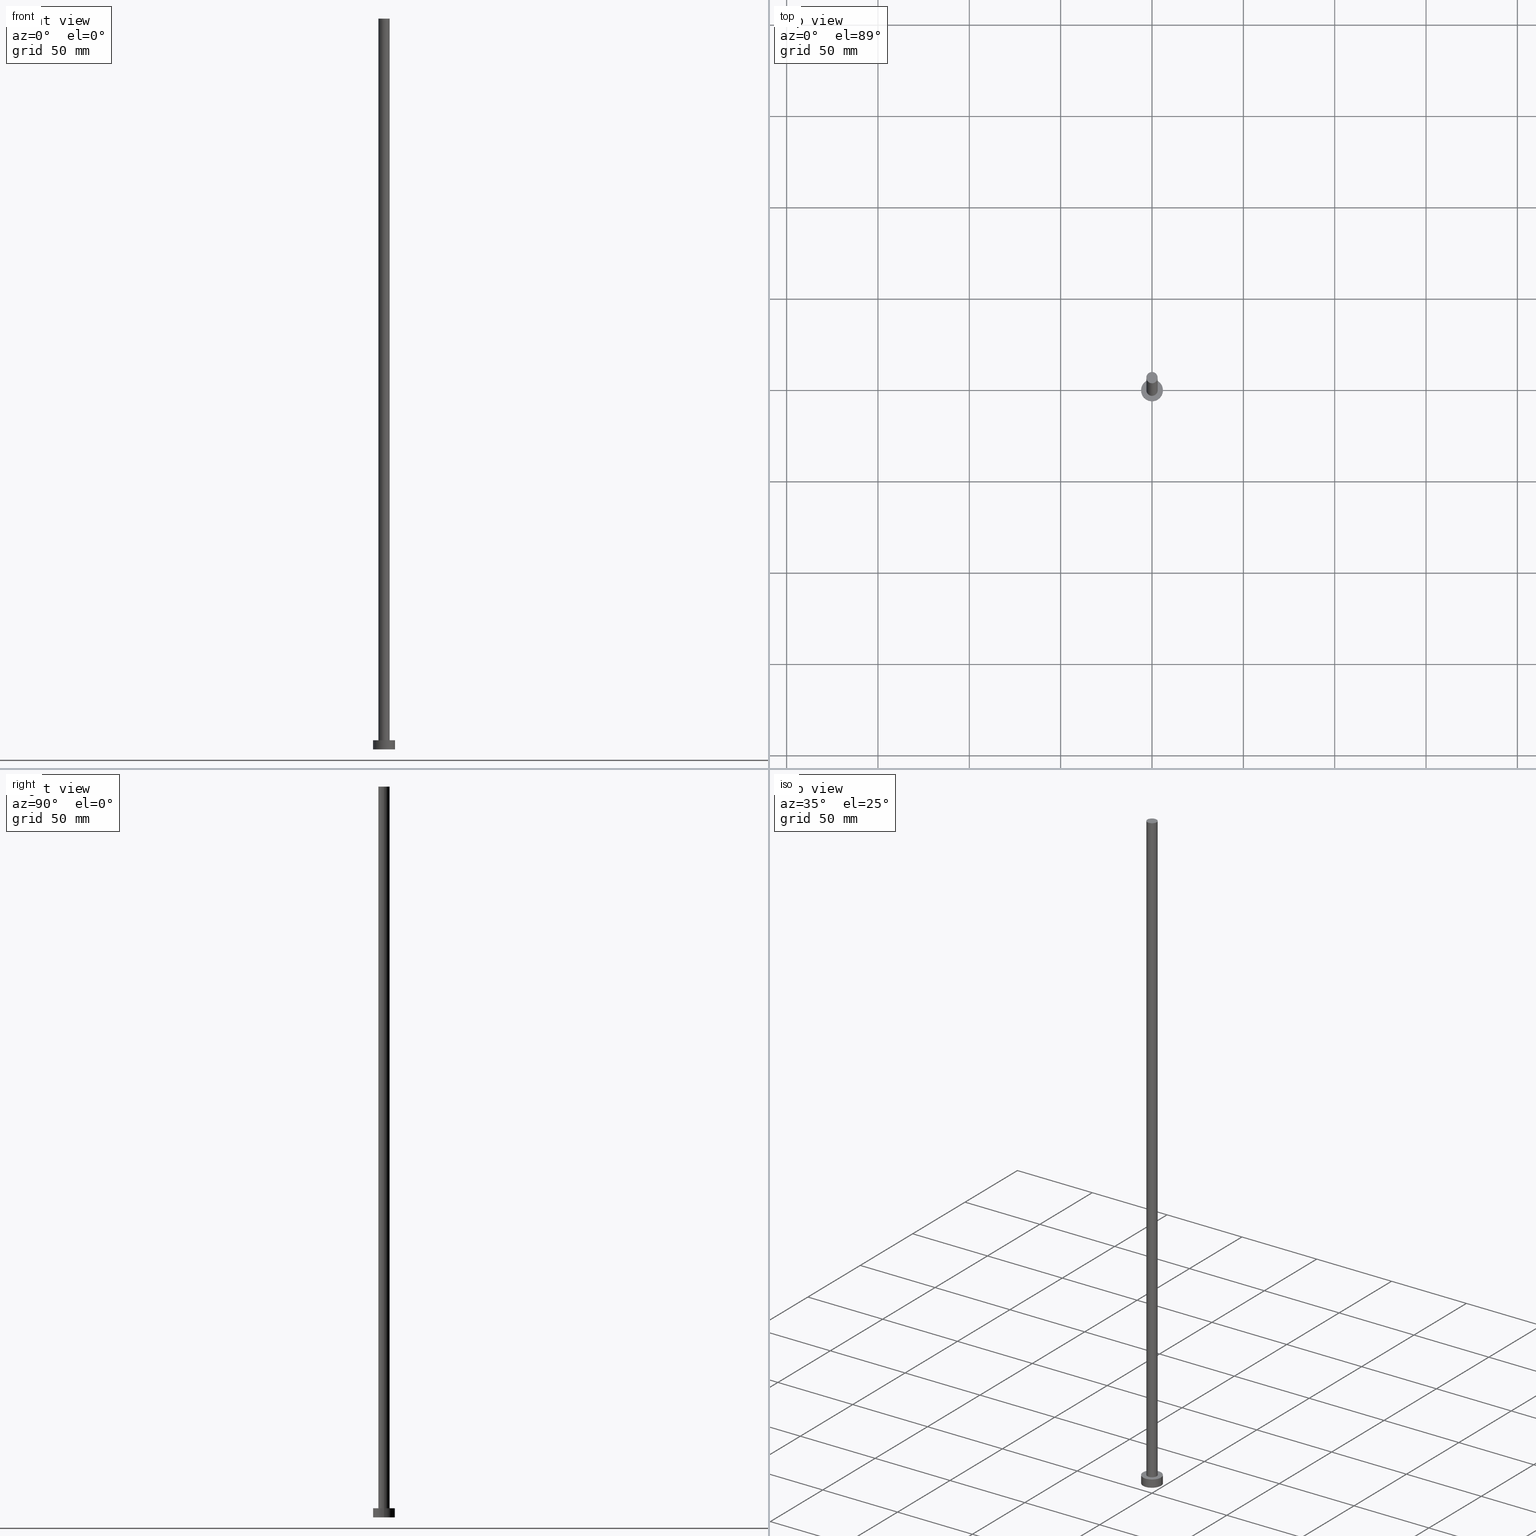
[diagram: canonical four-view strip — front | top / right | iso, engineering-drawing reading convention]
A machine part, canonical four-view strip (front | top / right | iso — engineering-drawing reading convention). The complete STEP part file that produces these views, byte-faithful:
ISO-10303-21;
HEADER;
FILE_DESCRIPTION (( 'STEP AP203' ),
    '1' );
FILE_NAME ('86df.STEP',
    '2023-02-12T12:10:16',
    ( '' ),
    ( '' ),
    'SwSTEP 2.0',
    'SolidWorks 2019',
    '' );
FILE_SCHEMA (( 'CONFIG_CONTROL_DESIGN' ));
ENDSEC;

DATA;
#1 = CARTESIAN_POINT ( 'NONE',  ( 0.000000000000000000, 0.000000000000000000, 0.000000000000000000 ) ) ;
#2 = CARTESIAN_POINT ( 'NONE',  ( 0.000000000000000000, 0.000000000000000000, 400.0000000000000000 ) ) ;
#3 = PERSON_AND_ORGANIZATION_ROLE ( 'creator' ) ;
#4 = DIRECTION ( 'NONE',  ( -0.000000000000000000, -0.000000000000000000, -1.000000000000000000 ) ) ;
#5 = EDGE_CURVE ( 'NONE', #125, #86, #202, .T. ) ;
#6 = ORIENTED_EDGE ( 'NONE', *, *, #38, .T. ) ;
#7 = LINE ( 'NONE', #65, #68 ) ;
#8 = APPROVAL_DATE_TIME ( #33, #161 ) ;
#9 = ORIENTED_EDGE ( 'NONE', *, *, #38, .F. ) ;
#10 = CC_DESIGN_APPROVAL ( #147, ( #41 ) ) ;
#11 = EDGE_CURVE ( 'NONE', #109, #32, #248, .T. ) ;
#12 = EDGE_CURVE ( 'NONE', #230, #18, #138, .T. ) ;
#13 = ORIENTED_EDGE ( 'NONE', *, *, #99, .F. ) ;
#14 = DESIGN_CONTEXT ( 'detailed design', #48, 'design' ) ;
#15 = VERTEX_POINT ( 'NONE', #210 ) ;
#16 = SECURITY_CLASSIFICATION_LEVEL ( 'unclassified' ) ;
#17 = LOCAL_TIME ( 13, 10, 16.00000000000000000, #219 ) ;
#18 = VERTEX_POINT ( 'NONE', #133 ) ;
#19 = CARTESIAN_POINT ( 'NONE',  ( 0.000000000000000000, 0.000000000000000000, 5.000000000000000000 ) ) ;
#20 = DIRECTION ( 'NONE',  ( -1.000000000000000000, 0.000000000000000000, 0.000000000000000000 ) ) ;
#21 = DATE_AND_TIME ( #171, #116 ) ;
#22 = CARTESIAN_POINT ( 'NONE',  ( 0.000000000000000000, 0.000000000000000000, 5.000000000000000000 ) ) ;
#23 = DIRECTION ( 'NONE',  ( -0.000000000000000000, -0.000000000000000000, -1.000000000000000000 ) ) ;
#24 = APPLICATION_CONTEXT ( 'configuration controlled 3d designs of mechanical parts and assemblies' ) ;
#25 = VERTEX_POINT ( 'NONE', #168 ) ;
#26 = DIRECTION ( 'NONE',  ( 0.000000000000000000, 0.000000000000000000, 1.000000000000000000 ) ) ;
#27 = AXIS2_PLACEMENT_3D ( 'NONE', #214, #118, #189 ) ;
#28 = DIRECTION ( 'NONE',  ( 0.000000000000000000, 0.000000000000000000, 1.000000000000000000 ) ) ;
#29 = PERSON_AND_ORGANIZATION ( #90, #82 ) ;
#30 = FACE_OUTER_BOUND ( 'NONE', #56, .T. ) ;
#31 = LOCAL_TIME ( 13, 10, 16.00000000000000000, #74 ) ;
#32 = VERTEX_POINT ( 'NONE', #238 ) ;
#33 = DATE_AND_TIME ( #101, #237 ) ;
#34 =( NAMED_UNIT ( * ) PLANE_ANGLE_UNIT ( ) SI_UNIT ( $, .RADIAN. ) );
#35 = ORIENTED_EDGE ( 'NONE', *, *, #81, .T. ) ;
#36 = EDGE_CURVE ( 'NONE', #109, #15, #208, .T. ) ;
#37 = CARTESIAN_POINT ( 'NONE',  ( 0.000000000000000000, 0.000000000000000000, 0.000000000000000000 ) ) ;
#38 = EDGE_CURVE ( 'NONE', #25, #32, #107, .T. ) ;
#39 = DIRECTION ( 'NONE',  ( 1.000000000000000000, 0.000000000000000000, -0.000000000000000000 ) ) ;
#40 = COORDINATED_UNIVERSAL_TIME_OFFSET ( 1, 0, .AHEAD. ) ;
#41 = PRODUCT_DEFINITION_FORMATION_WITH_SPECIFIED_SOURCE ( 'LIBOVOLN�', '', #178, .NOT_KNOWN. ) ;
#42 = ADVANCED_FACE ( 'NONE', ( #190 ), #252, .T. ) ;
#43 = APPROVAL_ROLE ( '' ) ;
#44 = CLOSED_SHELL ( 'NONE', ( #197, #42, #200, #54, #63, #127, #77 ) ) ;
#45 = CARTESIAN_POINT ( 'NONE',  ( 6.000000000000000888, 7.347880794884120722E-16, 0.000000000000000000 ) ) ;
#46 = APPROVAL_ROLE ( '' ) ;
#47 = DIRECTION ( 'NONE',  ( -0.000000000000000000, -0.000000000000000000, -1.000000000000000000 ) ) ;
#48 = APPLICATION_CONTEXT ( 'configuration controlled 3d designs of mechanical parts and assemblies' ) ;
#49 = AXIS2_PLACEMENT_3D ( 'NONE', #121, #239, #196 ) ;
#50 = APPROVAL_ROLE ( '' ) ;
#51 = EDGE_LOOP ( 'NONE', ( #201, #76, #134, #213 ) ) ;
#52 = ORIENTED_EDGE ( 'NONE', *, *, #104, .F. ) ;
#53 = AXIS2_PLACEMENT_3D ( 'NONE', #22, #73, #93 ) ;
#54 = ADVANCED_FACE ( 'NONE', ( #169, #131 ), #255, .T. ) ;
#55 = DIRECTION ( 'NONE',  ( 0.000000000000000000, 0.000000000000000000, 1.000000000000000000 ) ) ;
#56 = EDGE_LOOP ( 'NONE', ( #70, #139 ) ) ;
#57 = FACE_OUTER_BOUND ( 'NONE', #179, .T. ) ;
#58 = DATE_AND_TIME ( #146, #31 ) ;
#59 = DIRECTION ( 'NONE',  ( 0.000000000000000000, 0.000000000000000000, 1.000000000000000000 ) ) ;
#60 = AXIS2_PLACEMENT_3D ( 'NONE', #106, #156, #182 ) ;
#61 = CARTESIAN_POINT ( 'NONE',  ( 0.000000000000000000, 0.000000000000000000, 5.000000000000000000 ) ) ;
#62 = PERSON_AND_ORGANIZATION_ROLE ( 'creator' ) ;
#63 = ADVANCED_FACE ( 'NONE', ( #98 ), #151, .F. ) ;
#64 = COORDINATED_UNIVERSAL_TIME_OFFSET ( 1, 0, .AHEAD. ) ;
#65 = CARTESIAN_POINT ( 'NONE',  ( -6.000000000000000888, 0.000000000000000000, 5.000000000000000000 ) ) ;
#66 = PERSON_AND_ORGANIZATION ( #90, #82 ) ;
#67 = PRODUCT_RELATED_PRODUCT_CATEGORY ( 'detail', '', ( #178 ) ) ;
#68 = VECTOR ( 'NONE', #47, 1000.000000000000000 ) ;
#69 = CARTESIAN_POINT ( 'NONE',  ( -3.100000000000000089, 0.000000000000000000, 400.0000000000000000 ) ) ;
#70 = ORIENTED_EDGE ( 'NONE', *, *, #36, .T. ) ;
#71 = ORIENTED_EDGE ( 'NONE', *, *, #242, .F. ) ;
#72 = CC_DESIGN_PERSON_AND_ORGANIZATION_ASSIGNMENT ( #89, #253, ( #150 ) ) ;
#73 = DIRECTION ( 'NONE',  ( -0.000000000000000000, -0.000000000000000000, -1.000000000000000000 ) ) ;
#74 = COORDINATED_UNIVERSAL_TIME_OFFSET ( 1, 0, .AHEAD. ) ;
#75 = ORIENTED_EDGE ( 'NONE', *, *, #12, .T. ) ;
#76 = ORIENTED_EDGE ( 'NONE', *, *, #36, .F. ) ;
#77 = ADVANCED_FACE ( 'NONE', ( #30 ), #78, .T. ) ;
#78 = PLANE ( 'NONE',  #250 ) ;
#79 = CARTESIAN_POINT ( 'NONE',  ( 0.000000000000000000, 0.000000000000000000, 400.0000000000000000 ) ) ;
#80 = PERSON_AND_ORGANIZATION ( #90, #82 ) ;
#81 = EDGE_CURVE ( 'NONE', #15, #25, #218, .T. ) ;
#82 = ORGANIZATION ( 'NEUR�EN�', 'NEUR�EN�', '' ) ;
#83 = APPROVAL_STATUS ( 'not_yet_approved' ) ;
#84 = DIRECTION ( 'NONE',  ( 1.000000000000000000, 0.000000000000000000, 0.000000000000000000 ) ) ;
#85 = PERSON_AND_ORGANIZATION_ROLE ( 'design_owner' ) ;
#86 = VERTEX_POINT ( 'NONE', #45 ) ;
#87 = DIRECTION ( 'NONE',  ( 1.000000000000000000, 0.000000000000000000, 0.000000000000000000 ) ) ;
#88 = VECTOR ( 'NONE', #100, 1000.000000000000000 ) ;
#89 = PERSON_AND_ORGANIZATION ( #90, #82 ) ;
#90 = PERSON ( 'NEUR�EN�', 'NEUR�EN�', 'NEUR�EN�', ('NEUR�EN�'), ('NEUR�EN�'), ('NEUR�EN�') ) ;
#91 = DIRECTION ( 'NONE',  ( 1.000000000000000000, 0.000000000000000000, 0.000000000000000000 ) ) ;
#92 = DIRECTION ( 'NONE',  ( 0.000000000000000000, 0.000000000000000000, 1.000000000000000000 ) ) ;
#93 = DIRECTION ( 'NONE',  ( -1.000000000000000000, 0.000000000000000000, 0.000000000000000000 ) ) ;
#94 = ORIENTED_EDGE ( 'NONE', *, *, #5, .T. ) ;
#95 = LINE ( 'NONE', #132, #88 ) ;
#96 = CARTESIAN_POINT ( 'NONE',  ( -6.000000000000000888, 0.000000000000000000, 0.000000000000000000 ) ) ;
#97 = AXIS2_PLACEMENT_3D ( 'NONE', #113, #148, #87 ) ;
#98 = FACE_OUTER_BOUND ( 'NONE', #235, .T. ) ;
#99 = EDGE_CURVE ( 'NONE', #18, #86, #95, .T. ) ;
#100 = DIRECTION ( 'NONE',  ( -0.000000000000000000, -0.000000000000000000, -1.000000000000000000 ) ) ;
#101 = CALENDAR_DATE ( 2023, 12, 2 ) ;
#102 = AXIS2_PLACEMENT_3D ( 'NONE', #211, #115, #20 ) ;
#103 =( NAMED_UNIT ( * ) SI_UNIT ( $, .STERADIAN. ) SOLID_ANGLE_UNIT ( ) );
#104 = EDGE_CURVE ( 'NONE', #15, #109, #183, .T. ) ;
#105 = ORIENTED_EDGE ( 'NONE', *, *, #249, .F. ) ;
#106 = CARTESIAN_POINT ( 'NONE',  ( 0.000000000000000000, 0.000000000000000000, 5.000000000000000000 ) ) ;
#107 = CIRCLE ( 'NONE', #27, 3.100000000000000089 ) ;
#108 = CIRCLE ( 'NONE', #251, 6.000000000000000888 ) ;
#109 = VERTEX_POINT ( 'NONE', #170 ) ;
#110 = DIRECTION ( 'NONE',  ( 1.000000000000000000, 0.000000000000000000, 0.000000000000000000 ) ) ;
#111 = PERSON_AND_ORGANIZATION_ROLE ( 'design_supplier' ) ;
#112 = VECTOR ( 'NONE', #144, 1000.000000000000000 ) ;
#113 = CARTESIAN_POINT ( 'NONE',  ( 0.000000000000000000, 0.000000000000000000, 400.0000000000000000 ) ) ;
#114 = DATE_AND_TIME ( #215, #226 ) ;
#115 = DIRECTION ( 'NONE',  ( -0.000000000000000000, -0.000000000000000000, -1.000000000000000000 ) ) ;
#116 = LOCAL_TIME ( 13, 10, 16.00000000000000000, #64 ) ;
#117 = APPROVAL_DATE_TIME ( #130, #147 ) ;
#118 = DIRECTION ( 'NONE',  ( 0.000000000000000000, 0.000000000000000000, 1.000000000000000000 ) ) ;
#119 = CYLINDRICAL_SURFACE ( 'NONE', #102, 6.000000000000000888 ) ;
#120 = AXIS2_PLACEMENT_3D ( 'NONE', #61, #28, #137 ) ;
#121 = CARTESIAN_POINT ( 'NONE',  ( 0.000000000000000000, 0.000000000000000000, 0.000000000000000000 ) ) ;
#122 = AXIS2_PLACEMENT_3D ( 'NONE', #233, #55, #39 ) ;
#123 = EDGE_CURVE ( 'NONE', #32, #25, #187, .T. ) ;
#124 = CYLINDRICAL_SURFACE ( 'NONE', #220, 3.100000000000000089 ) ;
#125 = VERTEX_POINT ( 'NONE', #96 ) ;
#126 = UNCERTAINTY_MEASURE_WITH_UNIT (LENGTH_MEASURE( 1.000000000000000082E-05 ), #203, 'distance_accuracy_value', 'NONE');
#127 = ADVANCED_FACE ( 'NONE', ( #175 ), #135, .T. ) ;
#128 = ORIENTED_EDGE ( 'NONE', *, *, #212, .T. ) ;
#129 = CARTESIAN_POINT ( 'NONE',  ( 0.000000000000000000, 0.000000000000000000, 0.000000000000000000 ) ) ;
#130 = DATE_AND_TIME ( #195, #17 ) ;
#131 = FACE_OUTER_BOUND ( 'NONE', #245, .T. ) ;
#132 = CARTESIAN_POINT ( 'NONE',  ( 6.000000000000000888, 7.347880794884120722E-16, 5.000000000000000000 ) ) ;
#133 = CARTESIAN_POINT ( 'NONE',  ( 6.000000000000000888, 7.347880794884120722E-16, 5.000000000000000000 ) ) ;
#134 = ORIENTED_EDGE ( 'NONE', *, *, #11, .T. ) ;
#135 = CYLINDRICAL_SURFACE ( 'NONE', #141, 3.100000000000000089 ) ;
#136 = DIRECTION ( 'NONE',  ( 0.000000000000000000, 0.000000000000000000, 1.000000000000000000 ) ) ;
#137 = DIRECTION ( 'NONE',  ( 1.000000000000000000, 0.000000000000000000, 0.000000000000000000 ) ) ;
#138 = CIRCLE ( 'NONE', #154, 6.000000000000000888 ) ;
#139 = ORIENTED_EDGE ( 'NONE', *, *, #104, .T. ) ;
#140 = APPLICATION_PROTOCOL_DEFINITION ( 'international standard', 'config_control_design', 1994, #24 ) ;
#141 = AXIS2_PLACEMENT_3D ( 'NONE', #2, #176, #153 ) ;
#142 = AXIS2_PLACEMENT_3D ( 'NONE', #129, #247, #229 ) ;
#143 = APPROVAL_PERSON_ORGANIZATION ( #240, #147, #43 ) ;
#144 = DIRECTION ( 'NONE',  ( -0.000000000000000000, -0.000000000000000000, -1.000000000000000000 ) ) ;
#145 = CC_DESIGN_APPROVAL ( #205, ( #231 ) ) ;
#146 = CALENDAR_DATE ( 2023, 12, 2 ) ;
#147 = APPROVAL ( #174, 'NEUR�EN�' ) ;
#148 = DIRECTION ( 'NONE',  ( 0.000000000000000000, 0.000000000000000000, 1.000000000000000000 ) ) ;
#149 =( GEOMETRIC_REPRESENTATION_CONTEXT ( 3 ) GLOBAL_UNCERTAINTY_ASSIGNED_CONTEXT ( ( #126 ) ) GLOBAL_UNIT_ASSIGNED_CONTEXT ( ( #203, #34, #103 ) ) REPRESENTATION_CONTEXT ( 'NONE', 'WORKASPACE' ) );
#150 = SECURITY_CLASSIFICATION ( '', '', #16 ) ;
#151 = PLANE ( 'NONE',  #49 ) ;
#152 = PERSON_AND_ORGANIZATION ( #90, #82 ) ;
#153 = DIRECTION ( 'NONE',  ( -1.000000000000000000, 0.000000000000000000, 0.000000000000000000 ) ) ;
#154 = AXIS2_PLACEMENT_3D ( 'NONE', #19, #59, #91 ) ;
#155 = DIRECTION ( 'NONE',  ( -1.000000000000000000, 0.000000000000000000, 0.000000000000000000 ) ) ;
#156 = DIRECTION ( 'NONE',  ( 0.000000000000000000, 0.000000000000000000, 1.000000000000000000 ) ) ;
#157 = PRODUCT_DEFINITION_SHAPE ( 'NONE', 'NONE',  #231 ) ;
#158 = ORIENTED_EDGE ( 'NONE', *, *, #242, .T. ) ;
#159 = DIRECTION ( 'NONE',  ( 0.000000000000000000, 0.000000000000000000, 1.000000000000000000 ) ) ;
#160 = CIRCLE ( 'NONE', #60, 6.000000000000000888 ) ;
#161 = APPROVAL ( #83, 'NEUR�EN�' ) ;
#162 = ORIENTED_EDGE ( 'NONE', *, *, #249, .T. ) ;
#163 = MANIFOLD_SOLID_BREP ( 'P�idat vysunut�m3', #44 ) ;
#164 = APPROVAL_DATE_TIME ( #114, #205 ) ;
#165 = VECTOR ( 'NONE', #23, 1000.000000000000000 ) ;
#166 = CC_DESIGN_SECURITY_CLASSIFICATION ( #150, ( #41 ) ) ;
#167 = CC_DESIGN_PERSON_AND_ORGANIZATION_ASSIGNMENT ( #185, #85, ( #178 ) ) ;
#168 = CARTESIAN_POINT ( 'NONE',  ( 3.100000000000000089, 3.796405077356793932E-16, 5.000000000000000000 ) ) ;
#169 = FACE_BOUND ( 'NONE', #180, .T. ) ;
#170 = CARTESIAN_POINT ( 'NONE',  ( -3.100000000000000089, 0.000000000000000000, 400.0000000000000000 ) ) ;
#171 = CALENDAR_DATE ( 2023, 12, 2 ) ;
#172 = DIRECTION ( 'NONE',  ( 1.000000000000000000, 0.000000000000000000, 0.000000000000000000 ) ) ;
#173 = APPROVAL_PERSON_ORGANIZATION ( #222, #161, #46 ) ;
#174 = APPROVAL_STATUS ( 'not_yet_approved' ) ;
#175 = FACE_OUTER_BOUND ( 'NONE', #51, .T. ) ;
#176 = DIRECTION ( 'NONE',  ( -0.000000000000000000, -0.000000000000000000, -1.000000000000000000 ) ) ;
#177 = SHAPE_DEFINITION_REPRESENTATION ( #157, #207 ) ;
#178 = PRODUCT ( '86df', '86df', '', ( #204 ) ) ;
#179 = EDGE_LOOP ( 'NONE', ( #13, #232, #158, #94 ) ) ;
#180 = EDGE_LOOP ( 'NONE', ( #209, #9 ) ) ;
#181 = CC_DESIGN_DATE_AND_TIME_ASSIGNMENT ( #58, #198, ( #150 ) ) ;
#182 = DIRECTION ( 'NONE',  ( 1.000000000000000000, 0.000000000000000000, 0.000000000000000000 ) ) ;
#183 = CIRCLE ( 'NONE', #221, 3.100000000000000089 ) ;
#184 = CC_DESIGN_APPROVAL ( #161, ( #150 ) ) ;
#185 = PERSON_AND_ORGANIZATION ( #90, #82 ) ;
#186 = CC_DESIGN_PERSON_AND_ORGANIZATION_ASSIGNMENT ( #152, #62, ( #231 ) ) ;
#187 = CIRCLE ( 'NONE', #120, 3.100000000000000089 ) ;
#188 = AXIS2_PLACEMENT_3D ( 'NONE', #37, #159, #110 ) ;
#189 = DIRECTION ( 'NONE',  ( 1.000000000000000000, 0.000000000000000000, 0.000000000000000000 ) ) ;
#190 = FACE_OUTER_BOUND ( 'NONE', #236, .T. ) ;
#191 = CC_DESIGN_PERSON_AND_ORGANIZATION_ASSIGNMENT ( #80, #111, ( #41 ) ) ;
#192 = CARTESIAN_POINT ( 'NONE',  ( 3.100000000000000089, 3.796405077356793932E-16, 400.0000000000000000 ) ) ;
#193 = DATE_TIME_ROLE ( 'creation_date' ) ;
#194 = CARTESIAN_POINT ( 'NONE',  ( 0.000000000000000000, 0.000000000000000000, 400.0000000000000000 ) ) ;
#195 = CALENDAR_DATE ( 2023, 12, 2 ) ;
#196 = DIRECTION ( 'NONE',  ( 1.000000000000000000, 0.000000000000000000, -0.000000000000000000 ) ) ;
#197 = ADVANCED_FACE ( 'NONE', ( #241 ), #124, .T. ) ;
#198 = DATE_TIME_ROLE ( 'classification_date' ) ;
#199 = COORDINATED_UNIVERSAL_TIME_OFFSET ( 1, 0, .AHEAD. ) ;
#200 = ADVANCED_FACE ( 'NONE', ( #57 ), #119, .T. ) ;
#201 = ORIENTED_EDGE ( 'NONE', *, *, #81, .F. ) ;
#202 = CIRCLE ( 'NONE', #142, 6.000000000000000888 ) ;
#203 =( LENGTH_UNIT ( ) NAMED_UNIT ( * ) SI_UNIT ( .MILLI., .METRE. ) );
#204 = MECHANICAL_CONTEXT ( 'NONE', #24, 'mechanical' ) ;
#205 = APPROVAL ( #227, 'NEUR�EN�' ) ;
#206 = ORIENTED_EDGE ( 'NONE', *, *, #212, .F. ) ;
#207 = ADVANCED_BREP_SHAPE_REPRESENTATION ( '86df', ( #163, #188 ), #149 ) ;
#208 = CIRCLE ( 'NONE', #97, 3.100000000000000089 ) ;
#209 = ORIENTED_EDGE ( 'NONE', *, *, #123, .F. ) ;
#210 = CARTESIAN_POINT ( 'NONE',  ( 3.100000000000000089, 3.796405077356793932E-16, 400.0000000000000000 ) ) ;
#211 = CARTESIAN_POINT ( 'NONE',  ( 0.000000000000000000, 0.000000000000000000, 5.000000000000000000 ) ) ;
#212 = EDGE_CURVE ( 'NONE', #86, #125, #108, .T. ) ;
#213 = ORIENTED_EDGE ( 'NONE', *, *, #123, .T. ) ;
#214 = CARTESIAN_POINT ( 'NONE',  ( 0.000000000000000000, 0.000000000000000000, 5.000000000000000000 ) ) ;
#215 = CALENDAR_DATE ( 2023, 12, 2 ) ;
#216 = ORIENTED_EDGE ( 'NONE', *, *, #11, .F. ) ;
#217 = CARTESIAN_POINT ( 'NONE',  ( 0.000000000000000000, 0.000000000000000000, 400.0000000000000000 ) ) ;
#218 = LINE ( 'NONE', #192, #165 ) ;
#219 = COORDINATED_UNIVERSAL_TIME_OFFSET ( 1, 0, .AHEAD. ) ;
#220 = AXIS2_PLACEMENT_3D ( 'NONE', #217, #4, #155 ) ;
#221 = AXIS2_PLACEMENT_3D ( 'NONE', #194, #26, #172 ) ;
#222 = PERSON_AND_ORGANIZATION ( #90, #82 ) ;
#223 = EDGE_LOOP ( 'NONE', ( #52, #35, #6, #216 ) ) ;
#224 = CARTESIAN_POINT ( 'NONE',  ( -6.000000000000000888, 0.000000000000000000, 5.000000000000000000 ) ) ;
#225 = CC_DESIGN_DATE_AND_TIME_ASSIGNMENT ( #21, #193, ( #231 ) ) ;
#226 = LOCAL_TIME ( 13, 10, 16.00000000000000000, #40 ) ;
#227 = APPROVAL_STATUS ( 'not_yet_approved' ) ;
#228 = APPROVAL_PERSON_ORGANIZATION ( #66, #205, #50 ) ;
#229 = DIRECTION ( 'NONE',  ( 1.000000000000000000, 0.000000000000000000, 0.000000000000000000 ) ) ;
#230 = VERTEX_POINT ( 'NONE', #224 ) ;
#231 = PRODUCT_DEFINITION ( 'NEZN�M�', '', #41, #14 ) ;
#232 = ORIENTED_EDGE ( 'NONE', *, *, #12, .F. ) ;
#233 = CARTESIAN_POINT ( 'NONE',  ( 0.000000000000000000, 0.000000000000000000, 5.000000000000000000 ) ) ;
#234 = ORIENTED_EDGE ( 'NONE', *, *, #99, .T. ) ;
#235 = EDGE_LOOP ( 'NONE', ( #243, #206 ) ) ;
#236 = EDGE_LOOP ( 'NONE', ( #105, #234, #128, #71 ) ) ;
#237 = LOCAL_TIME ( 13, 10, 16.00000000000000000, #199 ) ;
#238 = CARTESIAN_POINT ( 'NONE',  ( -3.100000000000000089, 0.000000000000000000, 5.000000000000000000 ) ) ;
#239 = DIRECTION ( 'NONE',  ( 0.000000000000000000, 0.000000000000000000, 1.000000000000000000 ) ) ;
#240 = PERSON_AND_ORGANIZATION ( #90, #82 ) ;
#241 = FACE_OUTER_BOUND ( 'NONE', #223, .T. ) ;
#242 = EDGE_CURVE ( 'NONE', #230, #125, #7, .T. ) ;
#243 = ORIENTED_EDGE ( 'NONE', *, *, #5, .F. ) ;
#244 = CC_DESIGN_PERSON_AND_ORGANIZATION_ASSIGNMENT ( #29, #3, ( #41 ) ) ;
#245 = EDGE_LOOP ( 'NONE', ( #75, #162 ) ) ;
#246 = APPLICATION_PROTOCOL_DEFINITION ( 'international standard', 'config_control_design', 1994, #48 ) ;
#247 = DIRECTION ( 'NONE',  ( 0.000000000000000000, 0.000000000000000000, 1.000000000000000000 ) ) ;
#248 = LINE ( 'NONE', #69, #112 ) ;
#249 = EDGE_CURVE ( 'NONE', #18, #230, #160, .T. ) ;
#250 = AXIS2_PLACEMENT_3D ( 'NONE', #79, #136, #254 ) ;
#251 = AXIS2_PLACEMENT_3D ( 'NONE', #1, #92, #84 ) ;
#252 = CYLINDRICAL_SURFACE ( 'NONE', #53, 6.000000000000000888 ) ;
#253 = PERSON_AND_ORGANIZATION_ROLE ( 'classification_officer' ) ;
#254 = DIRECTION ( 'NONE',  ( 1.000000000000000000, 0.000000000000000000, -0.000000000000000000 ) ) ;
#255 = PLANE ( 'NONE',  #122 ) ;
ENDSEC;
END-ISO-10303-21;
